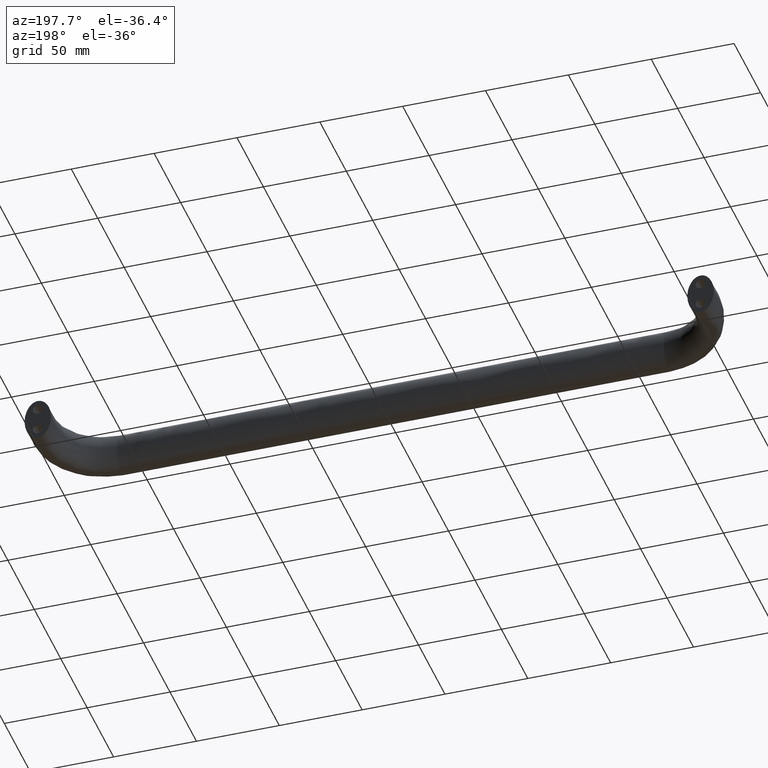
[diagram: clean part render]
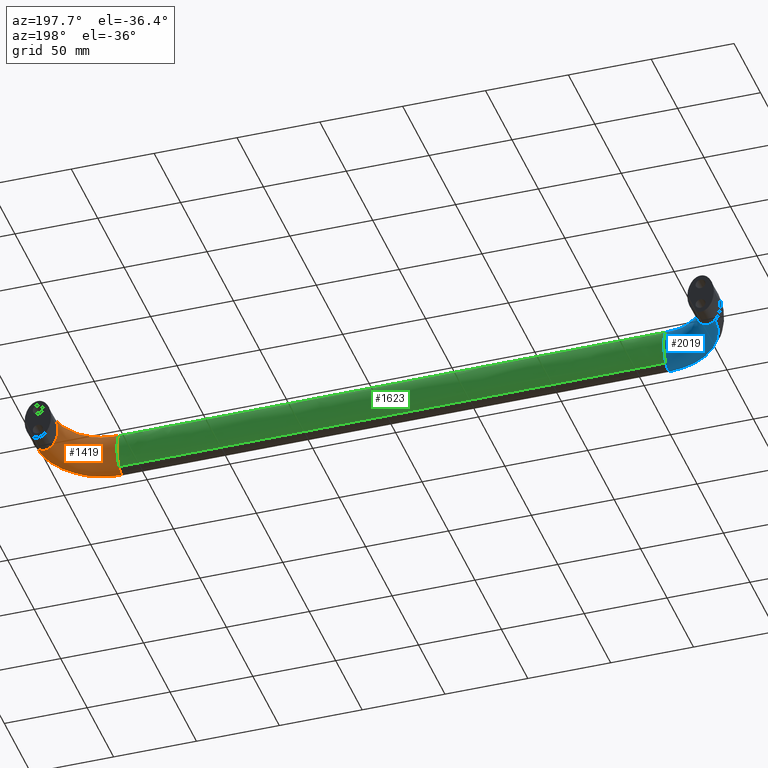
[diagram: same view with three faces highlighted in distinct colors, each labeled with its STEP entity id]
A machine part, auxiliary view with three faces highlighted in distinct colors.
Their STEP definitions:

[orange] entity #1419 — the highlighted face is a freeform B-spline surface patch.
#845=CARTESIAN_POINT('',(395.713650451803520,-13.0,-10.975612390205541));
#846=VERTEX_POINT('',#845);
#847=CARTESIAN_POINT('',(400.0,-13.0,-13.0));
#848=VERTEX_POINT('',#847);
#849=CARTESIAN_POINT('',(395.713650451803520,-13.0,-10.975612390205541));
#850=CARTESIAN_POINT('',(396.102646375906770,-13.0,-11.376898704711261));
#851=CARTESIAN_POINT('',(396.512839411650480,-13.0,-11.723901137766619));
#852=CARTESIAN_POINT('',(397.906016925125930,-13.0,-12.661644796688099));
#853=CARTESIAN_POINT('',(398.952802448803480,-13.0,-13.0));
#854=CARTESIAN_POINT('',(400.0,-13.0,-13.0));
#855=B_SPLINE_CURVE_WITH_KNOTS('',3,(#849,#850,#851,#852,#853,#854),.UNSPECIFIED.,.F.,.U.,(4,2,4),(0.409999999971026,0.437500000000000,0.500000000000000),.UNSPECIFIED.);
#856=EDGE_CURVE('',#846,#848,#855,.T.);
#899=CARTESIAN_POINT('',(400.0,-13.0,13.0));
#900=VERTEX_POINT('',#899);
#908=CARTESIAN_POINT('',(404.702026031346290,-13.0,-10.516608836256710));
#909=VERTEX_POINT('',#908);
#925=CARTESIAN_POINT('',(400.0,-13.0,-13.0));
#926=CARTESIAN_POINT('',(401.047197551196520,-13.0,-13.0));
#927=CARTESIAN_POINT('',(402.093983074874470,-13.0,-12.661644796688099));
#928=CARTESIAN_POINT('',(403.641958090168370,-13.0,-11.619707397670030));
#929=CARTESIAN_POINT('',(404.193626233137710,-13.0,-11.116537311956140));
#930=CARTESIAN_POINT('',(404.702026031346290,-13.0,-10.516608836256710));
#931=B_SPLINE_CURVE_WITH_KNOTS('',3,(#925,#926,#927,#928,#929,#930),.UNSPECIFIED.,.F.,.U.,(4,2,4),(0.500000000000000,0.562500000000000,0.600000000052967),.UNSPECIFIED.);
#932=EDGE_CURVE('',#848,#909,#931,.T.);
#986=CARTESIAN_POINT('',(400.0,-13.0,13.0));
#987=CARTESIAN_POINT('',(398.952802448803480,-13.0,13.0));
#988=CARTESIAN_POINT('',(397.906016925125930,-13.0,12.661644796688099));
#989=CARTESIAN_POINT('',(395.971048157033010,-13.0,11.359223048605340));
#990=CARTESIAN_POINT('',(395.083626240200490,-13.0,10.395668951176340));
#991=CARTESIAN_POINT('',(392.862184771121520,-13.0,6.785826563922671));
#992=CARTESIAN_POINT('',(392.0,-13.0,3.403392041388941));
#993=CARTESIAN_POINT('',(392.0,-13.0,-3.403392041388945));
#994=CARTESIAN_POINT('',(392.862184771121520,-13.0,-6.785826563922680));
#995=CARTESIAN_POINT('',(394.757814824392430,-13.0,-9.866225400487981));
#996=CARTESIAN_POINT('',(395.218564729751790,-13.0,-10.464884353081461));
#997=CARTESIAN_POINT('',(395.713650451803520,-13.0,-10.975612390205541));
#998=B_SPLINE_CURVE_WITH_KNOTS('',3,(#986,#987,#988,#989,#990,#991,#992,#993,#994,#995,#996,#997),.UNSPECIFIED.,.F.,.U.,(4,2,2,2,2,4),(0.0,0.062500000000000,0.125000000000000,0.250000000000000,0.375000000000000,0.409999999971026),.UNSPECIFIED.);
#999=EDGE_CURVE('',#900,#846,#998,.T.);
#1146=CARTESIAN_POINT('',(365.0,-48.0,13.0));
#1147=VERTEX_POINT('',#1146);
#1148=CARTESIAN_POINT('',(365.0,-48.0,13.0));
#1149=CARTESIAN_POINT('',(369.582238387206080,-47.999967262404901,13.0));
#1150=CARTESIAN_POINT('',(374.161176074402820,-47.089043632954393,13.0));
#1151=CARTESIAN_POINT('',(382.626664191153620,-43.582523642835604,13.0));
#1152=CARTESIAN_POINT('',(386.509135292397100,-40.988339390709008,13.0));
#1153=CARTESIAN_POINT('',(392.988339390661510,-34.509135292349249,13.0));
#1154=CARTESIAN_POINT('',(395.582523642740280,-30.626664191328331,13.0));
#1155=CARTESIAN_POINT('',(399.089043633049810,-22.161176074227850,13.0));
#1156=CARTESIAN_POINT('',(399.999967262340990,-17.582238387337100,13.0));
#1157=CARTESIAN_POINT('',(400.0,-13.0,13.0));
#1158=B_SPLINE_CURVE_WITH_KNOTS('',3,(#1148,#1149,#1150,#1151,#1152,#1153,#1154,#1155,#1156,#1157),.UNSPECIFIED.,.F.,.U.,(4,2,2,2,4),(0.854110883968730,0.883608251625648,0.913105619282566,0.942602986939485,0.972100354596403),.UNSPECIFIED.);
#1159=EDGE_CURVE('',#1147,#900,#1158,.T.);
#1161=CARTESIAN_POINT('',(365.0,-52.702026031346250,-10.516608836256699));
#1162=VERTEX_POINT('',#1161);
#1178=CARTESIAN_POINT('',(365.0,-52.702026031346250,-10.516608836256699));
#1179=CARTESIAN_POINT('',(370.197832790003420,-52.701986561494763,-10.516608837527739));
#1180=CARTESIAN_POINT('',(375.391921456345070,-51.668688504635632,-10.516608837527739));
#1181=CARTESIAN_POINT('',(384.994693729877890,-47.691089992556293,-10.516608837527739));
#1182=CARTESIAN_POINT('',(389.398749979083680,-44.748393686684700,-10.516608837527739));
#1183=CARTESIAN_POINT('',(396.748393686612590,-37.398749979011477,-10.516608837527739));
#1184=CARTESIAN_POINT('',(399.691089992463110,-32.994693730027159,-10.516608837527739));
#1185=CARTESIAN_POINT('',(403.668688504728610,-23.391921456195838,-10.516608837527739));
#1186=CARTESIAN_POINT('',(404.701986561451800,-18.197832790115118,-10.516608837527739));
#1187=CARTESIAN_POINT('',(404.702026031346290,-13.0,-10.516608836256710));
#1188=B_SPLINE_CURVE_WITH_KNOTS('',3,(#1178,#1179,#1180,#1181,#1182,#1183,#1184,#1185,#1186,#1187),.UNSPECIFIED.,.F.,.U.,(4,2,2,2,4),(0.854110883968730,0.883608251625648,0.913105619282566,0.942602986939485,0.972100354596403),.UNSPECIFIED.);
#1189=EDGE_CURVE('',#1162,#909,#1188,.T.);
#1194=CARTESIAN_POINT('',(365.0,-48.0,13.0));
#1195=CARTESIAN_POINT('',(365.0,-46.952802448803403,13.0));
#1196=CARTESIAN_POINT('',(365.0,-45.906016925125698,12.661644796688099));
#1197=CARTESIAN_POINT('',(365.0,-43.971048157032747,11.359223048605340));
#1198=CARTESIAN_POINT('',(365.0,-43.083626240200651,10.395668951176340));
#1199=CARTESIAN_POINT('',(365.0,-40.862184771121449,6.785826563922671));
#1200=CARTESIAN_POINT('',(365.0,-40.0,3.403392041388941));
#1201=CARTESIAN_POINT('',(365.0,-40.0,-3.403392041388945));
#1202=CARTESIAN_POINT('',(365.0,-40.862184771121449,-6.785826563922680));
#1203=CARTESIAN_POINT('',(365.0,-43.083626240200651,-10.395668951176340));
#1204=CARTESIAN_POINT('',(365.0,-43.971048157032747,-11.359223048605340));
#1205=CARTESIAN_POINT('',(365.0,-45.906016925125698,-12.661644796688099));
#1206=CARTESIAN_POINT('',(365.0,-46.952802448803403,-13.0));
#1207=CARTESIAN_POINT('',(365.0,-49.047197551196597,-13.0));
#1208=CARTESIAN_POINT('',(365.0,-50.093983074874203,-12.661644796688099));
#1209=CARTESIAN_POINT('',(365.0,-51.641958089348599,-11.619707398221911));
#1210=CARTESIAN_POINT('',(365.0,-52.193626231579323,-11.116537313377529));
#1211=CARTESIAN_POINT('',(365.0,-52.702026030269117,-10.516608837527739));
#1212=CARTESIAN_POINT('',(369.582238387206080,-47.999967262404901,13.0));
#1213=CARTESIAN_POINT('',(369.445138135756510,-46.952771180032997,13.0));
#1214=CARTESIAN_POINT('',(369.308091827275970,-45.905987101944298,12.661644796688099));
#1215=CARTESIAN_POINT('',(369.054763594672010,-43.971020963229101,11.359223048605340));
#1216=CARTESIAN_POINT('',(368.938581344383980,-43.083600232616547,10.395668951176340));
#1217=CARTESIAN_POINT('',(368.647747791628490,-40.862161674302001,6.785826563922671));
#1218=CARTESIAN_POINT('',(368.534869616055520,-39.999978008878053,3.403392041388941));
#1219=CARTESIAN_POINT('',(368.534869616055520,-39.999978008878053,-3.403392041388945));
#1220=CARTESIAN_POINT('',(368.647747791628490,-40.862161674287897,-6.785826563922680));
#1221=CARTESIAN_POINT('',(368.938581344383980,-43.083600232601853,-10.395668951176340));
#1222=CARTESIAN_POINT('',(369.054763594672010,-43.971020963229101,-11.359223048605340));
#1223=CARTESIAN_POINT('',(369.308091827275970,-45.905987101944298,-12.661644796688099));
#1224=CARTESIAN_POINT('',(369.445138135756510,-46.952771180032997,-13.0));
#1225=CARTESIAN_POINT('',(369.719338638655470,-49.047163344776813,-13.0));
#1226=CARTESIAN_POINT('',(369.856384947094000,-50.093947378889602,-12.661644796688099));
#1227=CARTESIAN_POINT('',(370.059047533056800,-51.641920162705517,-11.619707398221911));
#1228=CARTESIAN_POINT('',(370.131272531018280,-52.193587504803247,-11.116537313377529));
#1229=CARTESIAN_POINT('',(370.197832790003420,-52.701986561494763,-10.516608837527739));
#1230=CARTESIAN_POINT('',(374.161176074402820,-47.089043632954393,13.0));
#1231=CARTESIAN_POINT('',(373.887074327179500,-46.069101832527892,13.0));
#1232=CARTESIAN_POINT('',(373.613080427427520,-45.049561335647702,12.661644796688099));
#1233=CARTESIAN_POINT('',(373.106606439378030,-43.164954628108099,11.359223048605340));
#1234=CARTESIAN_POINT('',(372.874325626980010,-42.300629929712350,10.395668951176340));
#1235=CARTESIAN_POINT('',(372.292868014461990,-40.137006639215450,6.785826563922671));
#1236=CARTESIAN_POINT('',(372.067192971685470,-39.297262231152601,3.403392041388941));
#1237=CARTESIAN_POINT('',(372.067192971685470,-39.297262231152601,-3.403392041388945));
#1238=CARTESIAN_POINT('',(372.292868014461990,-40.137006639199548,-6.785826563922680));
#1239=CARTESIAN_POINT('',(372.874325626980010,-42.300629929712350,-10.395668951176340));
#1240=CARTESIAN_POINT('',(373.106606439378030,-43.164954628092246,-11.359223048605340));
#1241=CARTESIAN_POINT('',(373.613080427427520,-45.049561335631800,-12.661644796688099));
#1242=CARTESIAN_POINT('',(373.887074327179500,-46.069101832511997,-13.0));
#1243=CARTESIAN_POINT('',(374.435277821626020,-48.108985433380901,-13.0));
#1244=CARTESIAN_POINT('',(374.709271721378000,-49.128525930261098,-12.661644796688099));
#1245=CARTESIAN_POINT('',(375.114450911817580,-50.636211296292771,-11.619707398221911));
#1246=CARTESIAN_POINT('',(375.258848882846910,-51.173520992619977,-11.116537313377529));
#1247=CARTESIAN_POINT('',(375.391921456345070,-51.668688504635632,-10.516608837527739));
#1248=CARTESIAN_POINT('',(382.626664191153620,-43.582523642835604,13.0));
#1249=CARTESIAN_POINT('',(382.099275631864490,-42.667496675169147,13.0));
#1250=CARTESIAN_POINT('',(381.572094577314370,-41.752829731539549,12.661644796688099));
#1251=CARTESIAN_POINT('',(380.597607585977530,-40.062080357299791,11.359223048605340));
#1252=CARTESIAN_POINT('',(380.150685068196990,-39.286663164369351,10.395668951176340));
#1253=CARTESIAN_POINT('',(379.031924988344490,-37.345597842958149,6.785826563922671));
#1254=CARTESIAN_POINT('',(378.597712376028880,-36.592232524456797,3.403392041388941));
#1255=CARTESIAN_POINT('',(378.597712376028880,-36.592232524456797,-3.403392041388945));
#1256=CARTESIAN_POINT('',(379.031924988344490,-37.345597842974037,-6.785826563922680));
#1257=CARTESIAN_POINT('',(380.150685068196990,-39.286663164369351,-10.395668951176340));
#1258=CARTESIAN_POINT('',(380.597607585977530,-40.062080357315700,-11.359223048605340));
#1259=CARTESIAN_POINT('',(381.572094577314370,-41.752829731555501,-12.661644796688099));
#1260=CARTESIAN_POINT('',(382.099275631864490,-42.667496675185099,-13.0));
#1261=CARTESIAN_POINT('',(383.154052750442470,-44.497550610502053,-13.0));
#1262=CARTESIAN_POINT('',(383.681233804992470,-45.412217554131601,-12.661644796688099));
#1263=CARTESIAN_POINT('',(384.460823398062080,-46.764817053523437,-11.619707398221911));
#1264=CARTESIAN_POINT('',(384.738653943423510,-47.246857167887200,-11.116537313377529));
#1265=CARTESIAN_POINT('',(384.994693729877890,-47.691089992556300,-10.516608837527739));
#1266=CARTESIAN_POINT('',(386.509135292397100,-40.988339390709008,13.0));
#1267=CARTESIAN_POINT('',(385.865583469258520,-40.150930234366051,13.0));
#1268=CARTESIAN_POINT('',(385.222284856455470,-39.313850562767698,12.661644796688099));
#1269=CARTESIAN_POINT('',(384.033156141597490,-37.766520203004397,11.359223048605340));
#1270=CARTESIAN_POINT('',(383.487793911034490,-37.056878323252050,10.395668951176340));
#1271=CARTESIAN_POINT('',(382.122614336619620,-35.280465244029749,6.785826563922671));
#1272=CARTESIAN_POINT('',(381.592761511285000,-34.591004672836313,3.403392041388941));
#1273=CARTESIAN_POINT('',(381.592761511285000,-34.591004672836313,-3.403392041388945));
#1274=CARTESIAN_POINT('',(382.122614336619620,-35.280465244013847,-6.785826563922680));
#1275=CARTESIAN_POINT('',(383.487793911034490,-37.056878323267952,-10.395668951176340));
#1276=CARTESIAN_POINT('',(384.033156141597490,-37.766520203004397,-11.359223048605340));
#1277=CARTESIAN_POINT('',(385.222284856455470,-39.313850562767698,-12.661644796688099));
#1278=CARTESIAN_POINT('',(385.865583469258520,-40.150930234366051,-13.0));
#1279=CARTESIAN_POINT('',(387.152687115535510,-41.825748547051958,-13.0));
#1280=CARTESIAN_POINT('',(387.795985728338510,-42.662828218650247,-12.661644796688099));
#1281=CARTESIAN_POINT('',(388.747288700224890,-43.900692506460928,-11.619707398221911));
#1282=CARTESIAN_POINT('',(389.086314549010520,-44.341843226343371,-11.116537313377529));
#1283=CARTESIAN_POINT('',(389.398749979083680,-44.748393686684693,-10.516608837527739));
#1284=CARTESIAN_POINT('',(392.988339390661510,-34.509135292349249,13.0));
#1285=CARTESIAN_POINT('',(392.150930234413980,-33.865583469306102,13.0));
#1286=CARTESIAN_POINT('',(391.313850562735980,-33.222284856423649,12.661644796688099));
#1287=CARTESIAN_POINT('',(389.766520202988490,-32.033156141581550,11.359223048605340));
#1288=CARTESIAN_POINT('',(389.056878323220470,-31.487793911002800,10.395668951176340));
#1289=CARTESIAN_POINT('',(387.280465244045500,-30.122614336635301,6.785826563922671));
#1290=CARTESIAN_POINT('',(386.591004672788470,-29.592761511237200,3.403392041388941));
#1291=CARTESIAN_POINT('',(386.591004672788470,-29.592761511237200,-3.403392041388945));
#1292=CARTESIAN_POINT('',(387.280465244045500,-30.122614336651200,-6.785826563922680));
#1293=CARTESIAN_POINT('',(389.056878323220470,-31.487793910986898,-10.395668951176340));
#1294=CARTESIAN_POINT('',(389.766520202988490,-32.033156141581550,-11.359223048605340));
#1295=CARTESIAN_POINT('',(391.313850562735980,-33.222284856423649,-12.661644796688099));
#1296=CARTESIAN_POINT('',(392.150930234413980,-33.865583469306102,-13.0));
#1297=CARTESIAN_POINT('',(393.825748546908980,-35.152687115392403,-13.0));
#1298=CARTESIAN_POINT('',(394.662828218586980,-35.795985728274843,-12.661644796688099));
#1299=CARTESIAN_POINT('',(395.900692506384470,-36.747288700148488,-11.619707398221911));
#1300=CARTESIAN_POINT('',(396.341843226270780,-37.086314548937906,-11.116537313377529));
#1301=CARTESIAN_POINT('',(396.748393686612590,-37.398749979011477,-10.516608837527739));
#1302=CARTESIAN_POINT('',(395.582523642740280,-30.626664191328331,13.0));
#1303=CARTESIAN_POINT('',(394.667496675105610,-30.099275631991500,13.0));
#1304=CARTESIAN_POINT('',(393.752829731492000,-29.572094577521050,12.661644796688099));
#1305=CARTESIAN_POINT('',(392.062080357284000,-28.597607586207900,11.359223048605340));
#1306=CARTESIAN_POINT('',(391.286663164290020,-28.150685068387499,10.395668951176340));
#1307=CARTESIAN_POINT('',(389.345597842894510,-27.031924988487351,6.785826563922671));
#1308=CARTESIAN_POINT('',(388.592232524298030,-26.597712376164150,3.403392041388941));
#1309=CARTESIAN_POINT('',(388.592232524298030,-26.597712376164150,-3.403392041388945));
#1310=CARTESIAN_POINT('',(389.345597842894510,-27.031924988495302,-6.785826563922680));
#1311=CARTESIAN_POINT('',(391.286663164290020,-28.150685068379548,-10.395668951176340));
#1312=CARTESIAN_POINT('',(392.062080357284000,-28.597607586215851,-11.359223048605340));
#1313=CARTESIAN_POINT('',(393.752829731492000,-29.572094577529001,-12.661644796688099));
#1314=CARTESIAN_POINT('',(394.667496675105610,-30.099275631983549,-13.0));
#1315=CARTESIAN_POINT('',(396.497550610375010,-31.154052750665151,-13.0));
#1316=CARTESIAN_POINT('',(397.412217553988510,-31.681233805135602,-12.661644796688099));
#1317=CARTESIAN_POINT('',(398.764817053456510,-32.460823398186122,-11.619707398221911));
#1318=CARTESIAN_POINT('',(399.246857167808800,-32.738653943559036,-11.116537313377529));
#1319=CARTESIAN_POINT('',(399.691089992463110,-32.994693730027159,-10.516608837527739));
#1320=CARTESIAN_POINT('',(399.089043633049810,-22.161176074227850,13.0));
#1321=CARTESIAN_POINT('',(398.069101832591510,-21.887074327052201,13.0));
#1322=CARTESIAN_POINT('',(397.049561335695500,-21.613080427220599,12.661644796688099));
#1323=CARTESIAN_POINT('',(395.164954628124010,-21.106606439147601,11.359223048605340));
#1324=CARTESIAN_POINT('',(394.300629929792020,-20.874325626789350,10.395668951176340));
#1325=CARTESIAN_POINT('',(392.137006639278980,-20.292868014318749,6.785826563922671));
#1326=CARTESIAN_POINT('',(391.297262231311490,-20.067192971550600,3.403392041388941));
#1327=CARTESIAN_POINT('',(391.297262231311490,-20.067192971550600,-3.403392041388945));
#1328=CARTESIAN_POINT('',(392.137006639278980,-20.292868014310798,-6.785826563922680));
#1329=CARTESIAN_POINT('',(394.300629929792020,-20.874325626797301,-10.395668951176340));
#1330=CARTESIAN_POINT('',(395.164954628124010,-21.106606439139650,-11.359223048605340));
#1331=CARTESIAN_POINT('',(397.049561335695500,-21.613080427212651,-12.661644796688099));
#1332=CARTESIAN_POINT('',(398.069101832591510,-21.887074327060152,-13.0));
#1333=CARTESIAN_POINT('',(400.108985433508000,-22.435277821403499,-13.0));
#1334=CARTESIAN_POINT('',(401.128525930404010,-22.709271721235151,-12.661644796688099));
#1335=CARTESIAN_POINT('',(402.636211296359590,-23.114450911693549,-11.619707398221911));
#1336=CARTESIAN_POINT('',(403.173520992698170,-23.258848882711280,-11.116537313377529));
#1337=CARTESIAN_POINT('',(403.668688504728720,-23.391921456195838,-10.516608837527739));
#1338=CARTESIAN_POINT('',(399.999967262340990,-17.582238387337100,13.0));
#1339=CARTESIAN_POINT('',(398.952771179985970,-17.445138135851749,13.0));
#1340=CARTESIAN_POINT('',(397.905987101928990,-17.308091827431049,12.661644796688099));
#1341=CARTESIAN_POINT('',(395.971020963154500,-17.054763594844751,11.359223048605340));
#1342=CARTESIAN_POINT('',(395.083600232528510,-16.938581344527250,10.395668951176340));
#1343=CARTESIAN_POINT('',(392.862161674231520,-16.647747791736052,6.785826563922671));
#1344=CARTESIAN_POINT('',(391.999978008877970,-16.534869616156850,3.403392041388941));
#1345=CARTESIAN_POINT('',(391.999978008877970,-16.534869616156850,-3.403392041388945));
#1346=CARTESIAN_POINT('',(392.862161674231520,-16.647747791742049,-6.785826563922680));
#1347=CARTESIAN_POINT('',(395.083600232528510,-16.938581344521300,-10.395668951176340));
#1348=CARTESIAN_POINT('',(395.971020963154500,-17.054763594850751,-11.359223048605340));
#1349=CARTESIAN_POINT('',(397.905987101928990,-17.308091827437000,-12.661644796688099));
#1350=CARTESIAN_POINT('',(398.952771179985970,-17.445138135845799,-13.0));
#1351=CARTESIAN_POINT('',(401.047163344696000,-17.719338638822450,-13.0));
#1352=CARTESIAN_POINT('',(402.093947378775000,-17.856384947201452,-12.661644796688099));
#1353=CARTESIAN_POINT('',(403.641920162642580,-18.059047533149808,-11.619707398221911));
#1354=CARTESIAN_POINT('',(404.193587504753910,-18.131272531119841,-11.116537313377529));
#1355=CARTESIAN_POINT('',(404.701986561451800,-18.197832790115118,-10.516608837527739));
#1356=CARTESIAN_POINT('',(400.0,-13.0,13.0));
#1357=CARTESIAN_POINT('',(398.952802448803480,-13.0,13.0));
#1358=CARTESIAN_POINT('',(397.906016925125930,-13.0,12.661644796688099));
#1359=CARTESIAN_POINT('',(395.971048157033010,-13.0,11.359223048605340));
#1360=CARTESIAN_POINT('',(395.083626240200490,-13.0,10.395668951176340));
#1361=CARTESIAN_POINT('',(392.862184771121520,-13.0,6.785826563922671));
#1362=CARTESIAN_POINT('',(392.0,-13.0,3.403392041388941));
#1363=CARTESIAN_POINT('',(392.0,-13.0,-3.403392041388945));
#1364=CARTESIAN_POINT('',(392.862184771121520,-13.0,-6.785826563922680));
#1365=CARTESIAN_POINT('',(395.083626240200490,-13.0,-10.395668951176340));
#1366=CARTESIAN_POINT('',(395.971048157033010,-13.0,-11.359223048605340));
#1367=CARTESIAN_POINT('',(397.906016925125930,-13.0,-12.661644796688099));
#1368=CARTESIAN_POINT('',(398.952802448803480,-13.0,-13.0));
#1369=CARTESIAN_POINT('',(401.047197551196520,-13.0,-13.0));
#1370=CARTESIAN_POINT('',(402.093983074874470,-13.0,-12.661644796688099));
#1371=CARTESIAN_POINT('',(403.641958089348520,-13.0,-11.619707398221911));
#1372=CARTESIAN_POINT('',(404.193626231579290,-13.0,-11.116537313377529));
#1373=CARTESIAN_POINT('',(404.702026030269220,-13.0,-10.516608837527739));
#1374=B_SPLINE_SURFACE_WITH_KNOTS('',3,3,((#1194,#1212,#1230,#1248,#1266,#1284,#1302,#1320,#1338,#1356),(#1195,#1213,#1231,#1249,#1267,#1285,#1303,#1321,#1339,#1357),(#1196,#1214,#1232,#1250,#1268,#1286,#1304,#1322,#1340,#1358),(#1197,#1215,#1233,#1251,#1269,#1287,#1305,#1323,#1341,#1359),(#1198,#1216,#1234,#1252,#1270,#1288,#1306,#1324,#1342,#1360),(#1199,#1217,#1235,#1253,#1271,#1289,#1307,#1325,#1343,#1361),(#1200,#1218,#1236,#1254,#1272,#1290,#1308,#1326,#1344,#1362),(#1201,#1219,#1237,#1255,#1273,#1291,#1309,#1327,#1345,#1363),(#1202,#1220,#1238,#1256,#1274,#1292,#1310,#1328,#1346,#1364),(#1203,#1221,#1239,#1257,#1275,#1293,#1311,#1329,#1347,#1365),(#1204,#1222,#1240,#1258,#1276,#1294,#1312,#1330,#1348,#1366),(#1205,#1223,#1241,#1259,#1277,#1295,#1313,#1331,#1349,#1367),(#1206,#1224,#1242,#1260,#1278,#1296,#1314,#1332,#1350,#1368),(#1207,#1225,#1243,#1261,#1279,#1297,#1315,#1333,#1351,#1369),(#1208,#1226,#1244,#1262,#1280,#1298,#1316,#1334,#1352,#1370),(#1209,#1227,#1245,#1263,#1281,#1299,#1317,#1335,#1353,#1371),(#1210,#1228,#1246,#1264,#1282,#1300,#1318,#1336,#1354,#1372),(#1211,#1229,#1247,#1265,#1283,#1301,#1319,#1337,#1355,#1373)),.UNSPECIFIED.,.F.,.F.,.U.,(4,2,2,2,2,2,2,2,4),(4,2,2,2,4),(0.0,4.993041359138182,9.986082718276364,19.972165436552729,29.958248154829089,34.951289513967282,39.944330873105457,44.937372232243639,47.933197047726537),(0.0,15.593498370794830,31.186996741589720,46.780495112385204,62.373993483180087),.UNSPECIFIED.);
#1375=ORIENTED_EDGE('',*,*,#932,.T.);
#1376=ORIENTED_EDGE('',*,*,#1189,.F.);
#1377=CARTESIAN_POINT('',(365.0,-48.0,-13.0));
#1378=VERTEX_POINT('',#1377);
#1379=CARTESIAN_POINT('',(365.0,-48.0,-13.0));
#1380=CARTESIAN_POINT('',(365.0,-49.047197551196597,-13.0));
#1381=CARTESIAN_POINT('',(365.0,-50.093983074874203,-12.661644796688099));
#1382=CARTESIAN_POINT('',(365.0,-51.641958090168508,-11.619707397670030));
#1383=CARTESIAN_POINT('',(365.0,-52.193626233137707,-11.116537311956140));
#1384=CARTESIAN_POINT('',(365.0,-52.702026031346250,-10.516608836256699));
#1385=B_SPLINE_CURVE_WITH_KNOTS('',3,(#1379,#1380,#1381,#1382,#1383,#1384),.UNSPECIFIED.,.F.,.U.,(4,2,4),(0.500000000000000,0.562500000000000,0.600000000052967),.UNSPECIFIED.);
#1386=EDGE_CURVE('',#1378,#1162,#1385,.T.);
#1387=ORIENTED_EDGE('',*,*,#1386,.F.);
#1388=CARTESIAN_POINT('',(365.0,-43.713650452200071,-10.975612390614710));
#1389=VERTEX_POINT('',#1388);
#1390=CARTESIAN_POINT('',(365.0,-43.713650452200071,-10.975612390614710));
#1391=CARTESIAN_POINT('',(365.0,-44.102646376464328,-11.376898705183009));
#1392=CARTESIAN_POINT('',(365.0,-44.512839411939630,-11.723901137961390));
#1393=CARTESIAN_POINT('',(365.0,-45.906016925125698,-12.661644796688099));
#1394=CARTESIAN_POINT('',(365.0,-46.952802448803403,-13.0));
#1395=CARTESIAN_POINT('',(365.0,-48.0,-13.0));
#1396=B_SPLINE_CURVE_WITH_KNOTS('',3,(#1390,#1391,#1392,#1393,#1394,#1395),.UNSPECIFIED.,.F.,.U.,(4,2,4),(0.409999999989719,0.437500000000000,0.500000000000000),.UNSPECIFIED.);
#1397=EDGE_CURVE('',#1389,#1378,#1396,.T.);
#1398=ORIENTED_EDGE('',*,*,#1397,.F.);
#1399=CARTESIAN_POINT('',(365.0,-48.0,13.0));
#1400=CARTESIAN_POINT('',(365.0,-46.952802448803403,13.0));
#1401=CARTESIAN_POINT('',(365.0,-45.906016925125698,12.661644796688099));
#1402=CARTESIAN_POINT('',(365.0,-43.971048157032747,11.359223048605340));
#1403=CARTESIAN_POINT('',(365.0,-43.083626240200651,10.395668951176340));
#1404=CARTESIAN_POINT('',(365.0,-40.862184771121449,6.785826563922671));
#1405=CARTESIAN_POINT('',(365.0,-40.0,3.403392041388941));
#1406=CARTESIAN_POINT('',(365.0,-40.0,-3.403392041388945));
#1407=CARTESIAN_POINT('',(365.0,-40.862184771121449,-6.785826563922680));
#1408=CARTESIAN_POINT('',(365.0,-42.757814824613902,-9.866225400847878));
#1409=CARTESIAN_POINT('',(365.0,-43.218564730243941,-10.464884353720951));
#1410=CARTESIAN_POINT('',(365.0,-43.713650452200071,-10.975612390614710));
#1411=B_SPLINE_CURVE_WITH_KNOTS('',3,(#1399,#1400,#1401,#1402,#1403,#1404,#1405,#1406,#1407,#1408,#1409,#1410),.UNSPECIFIED.,.F.,.U.,(4,2,2,2,2,4),(0.0,0.062500000000000,0.125000000000000,0.250000000000000,0.375000000000000,0.409999999989719),.UNSPECIFIED.);
#1412=EDGE_CURVE('',#1147,#1389,#1411,.T.);
#1413=ORIENTED_EDGE('',*,*,#1412,.F.);
#1414=ORIENTED_EDGE('',*,*,#1159,.T.);
#1415=ORIENTED_EDGE('',*,*,#999,.T.);
#1416=ORIENTED_EDGE('',*,*,#856,.T.);
#1417=EDGE_LOOP('',(#1375,#1376,#1387,#1398,#1413,#1414,#1415,#1416));
#1418=FACE_OUTER_BOUND('',#1417,.T.);
#1419=ADVANCED_FACE('',(#1418),#1374,.F.);

[blue] entity #2019 — the highlighted face is a freeform B-spline surface patch.
#1496=CARTESIAN_POINT('',(35.0,-48.0,13.0));
#1497=VERTEX_POINT('',#1496);
#1505=CARTESIAN_POINT('',(35.0,-52.702026031346250,-10.516608836256699));
#1506=VERTEX_POINT('',#1505);
#1522=CARTESIAN_POINT('',(35.0,-48.0,-13.0));
#1523=VERTEX_POINT('',#1522);
#1524=CARTESIAN_POINT('',(35.0,-48.0,-13.0));
#1525=CARTESIAN_POINT('',(35.0,-49.047197551196597,-13.0));
#1526=CARTESIAN_POINT('',(35.0,-50.093983074874203,-12.661644796688099));
#1527=CARTESIAN_POINT('',(35.0,-51.641958090168508,-11.619707397670030));
#1528=CARTESIAN_POINT('',(35.0,-52.193626233137707,-11.116537311956140));
#1529=CARTESIAN_POINT('',(35.0,-52.702026031346250,-10.516608836256699));
#1530=B_SPLINE_CURVE_WITH_KNOTS('',3,(#1524,#1525,#1526,#1527,#1528,#1529),.UNSPECIFIED.,.F.,.U.,(4,2,4),(0.500000000000000,0.562500000000000,0.600000000052967),.UNSPECIFIED.);
#1531=EDGE_CURVE('',#1523,#1506,#1530,.T.);
#1533=CARTESIAN_POINT('',(35.0,-43.713650452200127,-10.975612390614710));
#1534=VERTEX_POINT('',#1533);
#1535=CARTESIAN_POINT('',(35.0,-43.713650452200127,-10.975612390614710));
#1536=CARTESIAN_POINT('',(35.0,-44.102646376464392,-11.376898705183009));
#1537=CARTESIAN_POINT('',(35.0,-44.512839411939687,-11.723901137961390));
#1538=CARTESIAN_POINT('',(35.0,-45.906016925125797,-12.661644796688099));
#1539=CARTESIAN_POINT('',(35.0,-46.952802448803403,-13.0));
#1540=CARTESIAN_POINT('',(35.0,-48.0,-13.0));
#1541=B_SPLINE_CURVE_WITH_KNOTS('',3,(#1535,#1536,#1537,#1538,#1539,#1540),.UNSPECIFIED.,.F.,.U.,(4,2,4),(0.409999999989719,0.437500000000000,0.500000000000000),.UNSPECIFIED.);
#1542=EDGE_CURVE('',#1534,#1523,#1541,.T.);
#1605=CARTESIAN_POINT('',(35.0,-48.0,13.0));
#1606=CARTESIAN_POINT('',(35.0,-46.952802448803403,13.0));
#1607=CARTESIAN_POINT('',(35.0,-45.906016925125797,12.661644796688099));
#1608=CARTESIAN_POINT('',(35.0,-43.971048157032797,11.359223048605340));
#1609=CARTESIAN_POINT('',(35.0,-43.083626240200701,10.395668951176340));
#1610=CARTESIAN_POINT('',(35.0,-40.862184771121498,6.785826563922671));
#1611=CARTESIAN_POINT('',(35.0,-40.0,3.403392041388941));
#1612=CARTESIAN_POINT('',(35.0,-40.0,-3.403392041388945));
#1613=CARTESIAN_POINT('',(35.0,-40.862184771121498,-6.785826563922680));
#1614=CARTESIAN_POINT('',(35.0,-42.757814824613952,-9.866225400847867));
#1615=CARTESIAN_POINT('',(35.0,-43.218564730243983,-10.464884353720930));
#1616=CARTESIAN_POINT('',(35.0,-43.713650452200127,-10.975612390614710));
#1617=B_SPLINE_CURVE_WITH_KNOTS('',3,(#1605,#1606,#1607,#1608,#1609,#1610,#1611,#1612,#1613,#1614,#1615,#1616),.UNSPECIFIED.,.F.,.U.,(4,2,2,2,2,4),(0.0,0.062500000000000,0.125000000000000,0.250000000000000,0.375000000000000,0.409999999989719),.UNSPECIFIED.);
#1618=EDGE_CURVE('',#1497,#1534,#1617,.T.);
#1746=CARTESIAN_POINT('',(1.986692E-015,-13.0,13.0));
#1747=VERTEX_POINT('',#1746);
#1748=CARTESIAN_POINT('',(1.998401E-015,-13.0,13.0));
#1749=CARTESIAN_POINT('',(0.000032737591510,-17.582238387316082,13.0));
#1750=CARTESIAN_POINT('',(0.910956367006005,-22.161176074256129,13.0));
#1751=CARTESIAN_POINT('',(4.417476357203890,-30.626664191300080,13.0));
#1752=CARTESIAN_POINT('',(7.011660609207886,-34.509135292250342,13.0));
#1753=CARTESIAN_POINT('',(13.490864707733850,-40.988339390808079,13.0));
#1754=CARTESIAN_POINT('',(17.373335808785079,-43.582523642825343,13.0));
#1755=CARTESIAN_POINT('',(25.838823925658620,-47.089043632964703,13.0));
#1756=CARTESIAN_POINT('',(30.417761612747970,-47.999967262420853,13.0));
#1757=CARTESIAN_POINT('',(35.0,-48.0,13.0));
#1758=B_SPLINE_CURVE_WITH_KNOTS('',3,(#1748,#1749,#1750,#1751,#1752,#1753,#1754,#1755,#1756,#1757),.UNSPECIFIED.,.F.,.U.,(4,2,2,2,4),(0.027899645403597,0.057397013060515,0.086894380717434,0.116391748374352,0.145889116031270),.UNSPECIFIED.);
#1759=EDGE_CURVE('',#1747,#1497,#1758,.T.);
#1761=CARTESIAN_POINT('',(-4.702026031346259,-13.0,-10.516608836256699));
#1762=VERTEX_POINT('',#1761);
#1778=CARTESIAN_POINT('',(-4.702026031346259,-13.0,-10.516608836256699));
#1779=CARTESIAN_POINT('',(-4.701986561503822,-18.197832790088299,-10.516608837527739));
#1780=CARTESIAN_POINT('',(-3.668688504690738,-23.391921456231760,-10.516608837527739));
#1781=CARTESIAN_POINT('',(0.308910007498723,-32.994693729991219,-10.516608837527739));
#1782=CARTESIAN_POINT('',(3.251606313221114,-37.398749978910139,-10.516608837527739));
#1783=CARTESIAN_POINT('',(10.601250021082681,-44.748393686786201,-10.516608837527739));
#1784=CARTESIAN_POINT('',(15.005306270095531,-47.691089992539560,-10.516608837527739));
#1785=CARTESIAN_POINT('',(24.608078543681380,-51.668688504652373,-10.516608837527739));
#1786=CARTESIAN_POINT('',(29.802167209976979,-52.701986561511710,-10.516608837527739));
#1787=CARTESIAN_POINT('',(35.0,-52.702026031346250,-10.516608836256699));
#1788=B_SPLINE_CURVE_WITH_KNOTS('',3,(#1778,#1779,#1780,#1781,#1782,#1783,#1784,#1785,#1786,#1787),.UNSPECIFIED.,.F.,.U.,(4,2,2,2,4),(0.027899645403597,0.057397013060515,0.086894380717434,0.116391748374352,0.145889116031270),.UNSPECIFIED.);
#1789=EDGE_CURVE('',#1762,#1506,#1788,.T.);
#1794=CARTESIAN_POINT('',(1.951564E-015,-13.0,13.0));
#1795=CARTESIAN_POINT('',(1.047197551196600,-13.0,13.0));
#1796=CARTESIAN_POINT('',(2.093983074874245,-13.0,12.661644796688099));
#1797=CARTESIAN_POINT('',(4.028951842967200,-13.0,11.359223048605340));
#1798=CARTESIAN_POINT('',(4.916373759799321,-13.0,10.395668951176340));
#1799=CARTESIAN_POINT('',(7.137815228878500,-13.0,6.785826563922671));
#1800=CARTESIAN_POINT('',(8.0,-13.0,3.403392041388941));
#1801=CARTESIAN_POINT('',(8.0,-13.0,-3.403392041388945));
#1802=CARTESIAN_POINT('',(7.137815228878500,-13.0,-6.785826563922680));
#1803=CARTESIAN_POINT('',(4.916373759799321,-13.0,-10.395668951176340));
#1804=CARTESIAN_POINT('',(4.028951842967196,-13.0,-11.359223048605340));
#1805=CARTESIAN_POINT('',(2.093983074874245,-13.0,-12.661644796688099));
#1806=CARTESIAN_POINT('',(1.047197551196596,-13.0,-13.0));
#1807=CARTESIAN_POINT('',(-1.047197551196600,-13.0,-13.0));
#1808=CARTESIAN_POINT('',(-2.093983074874240,-13.0,-12.661644796688099));
#1809=CARTESIAN_POINT('',(-3.641958089348604,-13.0,-11.619707398221911));
#1810=CARTESIAN_POINT('',(-4.193626231579324,-13.0,-11.116537313377529));
#1811=CARTESIAN_POINT('',(-4.702026030269138,-13.0,-10.516608837527739));
#1812=CARTESIAN_POINT('',(0.000032737591510,-17.582238387316082,13.0));
#1813=CARTESIAN_POINT('',(1.047228819966446,-17.445138135829900,13.0));
#1814=CARTESIAN_POINT('',(2.094012898046075,-17.308091827411250,12.661644796688099));
#1815=CARTESIAN_POINT('',(4.028979036765255,-17.054763594829002,11.359223048605340));
#1816=CARTESIAN_POINT('',(4.916399767387099,-16.938581344501401,10.395668951176340));
#1817=CARTESIAN_POINT('',(7.137838325703240,-16.647747791726701,6.785826563922671));
#1818=CARTESIAN_POINT('',(8.000021991114990,-16.534869616137300,3.403392041388941));
#1819=CARTESIAN_POINT('',(8.000021991114990,-16.534869616137300,-3.403392041388945));
#1820=CARTESIAN_POINT('',(7.137838325703231,-16.647747791720750,-6.785826563922680));
#1821=CARTESIAN_POINT('',(4.916399767387090,-16.938581344507401,-10.395668951176340));
#1822=CARTESIAN_POINT('',(4.028979036765250,-17.054763594823051,-11.359223048605340));
#1823=CARTESIAN_POINT('',(2.094012898046070,-17.308091827411250,-12.661644796688099));
#1824=CARTESIAN_POINT('',(1.047228819966442,-17.445138135823900,-13.0));
#1825=CARTESIAN_POINT('',(-1.047163344783428,-17.719338638796302,-13.0));
#1826=CARTESIAN_POINT('',(-2.093947378887575,-17.856384947173151,-12.661644796688099));
#1827=CARTESIAN_POINT('',(-3.641920162706823,-18.059047533118310,-11.619707398221911));
#1828=CARTESIAN_POINT('',(-4.193587504808871,-18.131272531091501,-11.116537313377529));
#1829=CARTESIAN_POINT('',(-4.701986561503823,-18.197832790088299,-10.516608837527739));
#1830=CARTESIAN_POINT('',(0.910956367006005,-22.161176074256129,13.0));
#1831=CARTESIAN_POINT('',(1.930898167438050,-21.887074327081599,13.0));
#1832=CARTESIAN_POINT('',(2.950438664323995,-21.613080427247102,12.661644796688099));
#1833=CARTESIAN_POINT('',(4.835045371867330,-21.106606439168800,11.359223048605340));
#1834=CARTESIAN_POINT('',(5.699370070262100,-20.874325626824000,10.395668951176340));
#1835=CARTESIAN_POINT('',(7.862993360764441,-20.292868014331450,6.785826563922671));
#1836=CARTESIAN_POINT('',(8.702737768830291,-20.067192971576851,3.403392041388941));
#1837=CARTESIAN_POINT('',(8.702737768830291,-20.067192971576851,-3.403392041388945));
#1838=CARTESIAN_POINT('',(7.862993360764441,-20.292868014339401,-6.785826563922680));
#1839=CARTESIAN_POINT('',(5.699370070260110,-20.874325626816049,-10.395668951176340));
#1840=CARTESIAN_POINT('',(4.835045371867330,-21.106606439176751,-11.359223048605340));
#1841=CARTESIAN_POINT('',(2.950438664323990,-21.613080427247102,-12.661644796688099));
#1842=CARTESIAN_POINT('',(1.930898167437055,-21.887074327089550,-13.0));
#1843=CARTESIAN_POINT('',(-0.108985433426042,-22.435277821438600,-13.0));
#1844=CARTESIAN_POINT('',(-1.128525930312970,-22.709271721273101,-12.661644796688099));
#1845=CARTESIAN_POINT('',(-2.636211296348034,-23.114450911735741,-11.619707398221911));
#1846=CARTESIAN_POINT('',(-3.173520992675056,-23.258848882749248,-11.116537313377529));
#1847=CARTESIAN_POINT('',(-3.668688504690738,-23.391921456231760,-10.516608837527739));
#1848=CARTESIAN_POINT('',(4.417476357203890,-30.626664191300080,13.0));
#1849=CARTESIAN_POINT('',(5.332503324864801,-30.099275631962151,13.0));
#1850=CARTESIAN_POINT('',(6.247170268488640,-29.572094577494550,12.661644796688099));
#1851=CARTESIAN_POINT('',(7.937919642724620,-28.597607586186751,11.359223048605340));
#1852=CARTESIAN_POINT('',(8.713336835656110,-28.150685068352850,10.395668951176340));
#1853=CARTESIAN_POINT('',(10.654402157061901,-27.031924988474699,6.785826563922671));
#1854=CARTESIAN_POINT('',(11.407767475560201,-26.597712376137949,3.403392041388941));
#1855=CARTESIAN_POINT('',(11.407767475560201,-26.597712376137949,-3.403392041388945));
#1856=CARTESIAN_POINT('',(10.654402157061901,-27.031924988466749,-6.785826563922680));
#1857=CARTESIAN_POINT('',(8.713336835658090,-28.150685068360801,-10.395668951176340));
#1858=CARTESIAN_POINT('',(7.937919642724620,-28.597607586178800,-11.359223048605340));
#1859=CARTESIAN_POINT('',(6.247170268488629,-29.572094577494550,-12.661644796688099));
#1860=CARTESIAN_POINT('',(5.332503324865790,-30.099275631954200,-13.0));
#1861=CARTESIAN_POINT('',(3.502449389542981,-31.154052750630051,-13.0));
#1862=CARTESIAN_POINT('',(2.587782445920145,-31.681233805097651,-12.661644796688099));
#1863=CARTESIAN_POINT('',(1.235182946531754,-32.460823398143937,-11.619707398221911));
#1864=CARTESIAN_POINT('',(0.753142832167799,-32.738653943521058,-11.116537313377529));
#1865=CARTESIAN_POINT('',(0.308910007498723,-32.994693729991212,-10.516608837527739));
#1866=CARTESIAN_POINT('',(7.011660609207886,-34.509135292250342,13.0));
#1867=CARTESIAN_POINT('',(7.849069765552321,-33.865583469212602,13.0));
#1868=CARTESIAN_POINT('',(8.686149437152089,-33.222284856343549,12.661644796688099));
#1869=CARTESIAN_POINT('',(10.233479796926700,-32.033156141512762,11.359223048605340));
#1870=CARTESIAN_POINT('',(10.943121676672940,-31.487793910915951,10.395668951176340));
#1871=CARTESIAN_POINT('',(12.719534755909800,-30.122614336559000,6.785826563922671));
#1872=CARTESIAN_POINT('',(13.408995327109119,-29.592761511174750,3.403392041388941));
#1873=CARTESIAN_POINT('',(13.408995327109119,-29.592761511174750,-3.403392041388945));
#1874=CARTESIAN_POINT('',(12.719534755909780,-30.122614336559050,-6.785826563922680));
#1875=CARTESIAN_POINT('',(10.943121676668961,-31.487793910931849,-10.395668951176340));
#1876=CARTESIAN_POINT('',(10.233479796922721,-32.033156141496853,-11.359223048605340));
#1877=CARTESIAN_POINT('',(8.686149437152089,-33.222284856343549,-12.661644796688099));
#1878=CARTESIAN_POINT('',(7.849069765552321,-33.865583469228497,-13.0));
#1879=CARTESIAN_POINT('',(6.174251452863441,-35.152687115303898,-13.0));
#1880=CARTESIAN_POINT('',(5.337171781259700,-35.795985728188853,-12.661644796688099));
#1881=CARTESIAN_POINT('',(4.099307493443197,-36.747288700040812,-11.619707398221911));
#1882=CARTESIAN_POINT('',(3.658156773562075,-37.086314548833450,-11.116537313377529));
#1883=CARTESIAN_POINT('',(3.251606313221114,-37.398749978910153,-10.516608837527739));
#1884=CARTESIAN_POINT('',(13.490864707733850,-40.988339390808079,13.0));
#1885=CARTESIAN_POINT('',(14.134416530775541,-40.150930234459651,13.0));
#1886=CARTESIAN_POINT('',(14.777715143656501,-39.313850562847954,12.661644796688099));
#1887=CARTESIAN_POINT('',(15.966843858487350,-37.766520203073348,11.359223048605340));
#1888=CARTESIAN_POINT('',(16.512206089072201,-37.056878323339049,10.395668951176340));
#1889=CARTESIAN_POINT('',(17.877385663425152,-35.280465244106153,6.785826563922671));
#1890=CARTESIAN_POINT('',(18.407238488817349,-34.591004672898848,3.403392041388941));
#1891=CARTESIAN_POINT('',(18.407238488817349,-34.591004672898848,-3.403392041388945));
#1892=CARTESIAN_POINT('',(17.877385663425152,-35.280465244106153,-6.785826563922680));
#1893=CARTESIAN_POINT('',(16.512206089076152,-37.056878323323147,-10.395668951176340));
#1894=CARTESIAN_POINT('',(15.966843858491300,-37.766520203089250,-11.359223048605340));
#1895=CARTESIAN_POINT('',(14.777715143656501,-39.313850562847954,-12.661644796688099));
#1896=CARTESIAN_POINT('',(14.134416530775519,-40.150930234443749,-13.0));
#1897=CARTESIAN_POINT('',(12.847312884692160,-41.825748547140599,-13.0));
#1898=CARTESIAN_POINT('',(12.204014271815160,-42.662828218736401,-12.661644796688099));
#1899=CARTESIAN_POINT('',(11.252711299947340,-43.900692506568802,-11.619707398221911));
#1900=CARTESIAN_POINT('',(10.913685451156610,-44.341843226448013,-11.116537313377529));
#1901=CARTESIAN_POINT('',(10.601250021082681,-44.748393686786201,-10.516608837527739));
#1902=CARTESIAN_POINT('',(17.373335808785079,-43.582523642825343,13.0));
#1903=CARTESIAN_POINT('',(17.900724368122599,-42.667496675165502,13.0));
#1904=CARTESIAN_POINT('',(18.427905422581851,-41.752829731534547,12.661644796688099));
#1905=CARTESIAN_POINT('',(19.402392413880950,-40.062080357308197,11.359223048605340));
#1906=CARTESIAN_POINT('',(19.849314931706552,-39.286663164376563,10.395668951176340));
#1907=CARTESIAN_POINT('',(20.968075011591800,-37.345597842962448,6.785826563922671));
#1908=CARTESIAN_POINT('',(21.402287623912301,-36.592232524460051,3.403392041388941));
#1909=CARTESIAN_POINT('',(21.402287623912301,-36.592232524460051,-3.403392041388945));
#1910=CARTESIAN_POINT('',(20.968075011591800,-37.345597842978400,-6.785826563922680));
#1911=CARTESIAN_POINT('',(19.849314931706552,-39.286663164360696,-10.395668951176340));
#1912=CARTESIAN_POINT('',(19.402392413888901,-40.062080357308197,-11.359223048605340));
#1913=CARTESIAN_POINT('',(18.427905422581851,-41.752829731550449,-12.661644796688099));
#1914=CARTESIAN_POINT('',(17.900724368114648,-42.667496675181397,-13.0));
#1915=CARTESIAN_POINT('',(16.845947249439600,-44.497550610501101,-13.0));
#1916=CARTESIAN_POINT('',(16.318766194980348,-45.412217554131992,-12.661644796688099));
#1917=CARTESIAN_POINT('',(15.539176601941071,-46.764817053500401,-11.619707398221911));
#1918=CARTESIAN_POINT('',(15.261346056565110,-47.246857167866757,-11.116537313377529));
#1919=CARTESIAN_POINT('',(15.005306270095531,-47.691089992539560,-10.516608837527739));
#1920=CARTESIAN_POINT('',(25.838823925658620,-47.089043632964703,13.0));
#1921=CARTESIAN_POINT('',(26.112925672833551,-46.069101832531601,13.0));
#1922=CARTESIAN_POINT('',(26.386919572676401,-45.049561335652797,12.661644796688099));
#1923=CARTESIAN_POINT('',(26.893393560763450,-43.164954628099800,11.359223048605340));
#1924=CARTESIAN_POINT('',(27.125674373116500,-42.300629929705202,10.395668951176340));
#1925=CARTESIAN_POINT('',(27.707131985602000,-40.137006639211137,6.785826563922671));
#1926=CARTESIAN_POINT('',(27.932807028372849,-39.297262231149453,3.403392041388941));
#1927=CARTESIAN_POINT('',(27.932807028372849,-39.297262231149453,-3.403392041388945));
#1928=CARTESIAN_POINT('',(27.707131985601951,-40.137006639195249,-6.785826563922680));
#1929=CARTESIAN_POINT('',(27.125674373116500,-42.300629929721097,-10.395668951176340));
#1930=CARTESIAN_POINT('',(26.893393560755499,-43.164954628099849,-11.359223048605340));
#1931=CARTESIAN_POINT('',(26.386919572676401,-45.049561335636902,-12.661644796688099));
#1932=CARTESIAN_POINT('',(26.112925672841499,-46.069101832515699,-13.0));
#1933=CARTESIAN_POINT('',(25.564722178491600,-48.108985433381903,-13.0));
#1934=CARTESIAN_POINT('',(25.290728278648800,-49.128525930260800,-12.661644796688099));
#1935=CARTESIAN_POINT('',(24.885549088179161,-50.636211296315842,-11.619707398221911));
#1936=CARTESIAN_POINT('',(24.741151117164481,-51.173520992640427,-11.116537313377529));
#1937=CARTESIAN_POINT('',(24.608078543681380,-51.668688504652373,-10.516608837527739));
#1938=CARTESIAN_POINT('',(30.417761612747970,-47.999967262420853,13.0));
#1939=CARTESIAN_POINT('',(30.554861864233850,-46.952771180048693,13.0));
#1940=CARTESIAN_POINT('',(30.691908172646212,-45.905987101959703,12.661644796688099));
#1941=CARTESIAN_POINT('',(30.945236405221952,-43.971020963244086,11.359223048605340));
#1942=CARTESIAN_POINT('',(31.061418655543250,-43.083600232631312,10.395668951176340));
#1943=CARTESIAN_POINT('',(31.352252208323300,-40.862161674316162,6.785826563922671));
#1944=CARTESIAN_POINT('',(31.465130383900551,-39.999978008891951,3.403392041388941));
#1945=CARTESIAN_POINT('',(31.465130383900551,-39.999978008891951,-3.403392041388945));
#1946=CARTESIAN_POINT('',(31.352252208323300,-40.862161674302051,-6.785826563922680));
#1947=CARTESIAN_POINT('',(31.061418655543299,-43.083600232616597,-10.395668951176340));
#1948=CARTESIAN_POINT('',(30.945236405227899,-43.971020963244086,-11.359223048605340));
#1949=CARTESIAN_POINT('',(30.691908172646212,-45.905987101959703,-12.661644796688099));
#1950=CARTESIAN_POINT('',(30.554861864227849,-46.952771180048693,-13.0));
#1951=CARTESIAN_POINT('',(30.280661361256101,-49.047163344793013,-13.0));
#1952=CARTESIAN_POINT('',(30.143615052885551,-50.093947378906002,-12.661644796688099));
#1953=CARTESIAN_POINT('',(29.940952466945632,-51.641920162722244,-11.619707398221911));
#1954=CARTESIAN_POINT('',(29.868727468973329,-52.193587504820087,-11.116537313377529));
#1955=CARTESIAN_POINT('',(29.802167209976979,-52.701986561511710,-10.516608837527739));
#1956=CARTESIAN_POINT('',(35.0,-48.0,13.0));
#1957=CARTESIAN_POINT('',(35.0,-46.952802448803403,13.0));
#1958=CARTESIAN_POINT('',(35.0,-45.906016925125797,12.661644796688099));
#1959=CARTESIAN_POINT('',(35.0,-43.971048157032797,11.359223048605340));
#1960=CARTESIAN_POINT('',(35.0,-43.083626240200701,10.395668951176340));
#1961=CARTESIAN_POINT('',(35.0,-40.862184771121498,6.785826563922671));
#1962=CARTESIAN_POINT('',(35.0,-40.0,3.403392041388941));
#1963=CARTESIAN_POINT('',(35.0,-40.0,-3.403392041388945));
#1964=CARTESIAN_POINT('',(35.0,-40.862184771121498,-6.785826563922680));
#1965=CARTESIAN_POINT('',(35.0,-43.083626240200701,-10.395668951176340));
#1966=CARTESIAN_POINT('',(35.0,-43.971048157032797,-11.359223048605340));
#1967=CARTESIAN_POINT('',(35.0,-45.906016925125797,-12.661644796688099));
#1968=CARTESIAN_POINT('',(35.0,-46.952802448803403,-13.0));
#1969=CARTESIAN_POINT('',(35.0,-49.047197551196597,-13.0));
#1970=CARTESIAN_POINT('',(35.0,-50.093983074874203,-12.661644796688099));
#1971=CARTESIAN_POINT('',(35.0,-51.641958089348599,-11.619707398221911));
#1972=CARTESIAN_POINT('',(35.0,-52.193626231579323,-11.116537313377529));
#1973=CARTESIAN_POINT('',(35.0,-52.702026030269117,-10.516608837527739));
#1974=B_SPLINE_SURFACE_WITH_KNOTS('',3,3,((#1794,#1812,#1830,#1848,#1866,#1884,#1902,#1920,#1938,#1956),(#1795,#1813,#1831,#1849,#1867,#1885,#1903,#1921,#1939,#1957),(#1796,#1814,#1832,#1850,#1868,#1886,#1904,#1922,#1940,#1958),(#1797,#1815,#1833,#1851,#1869,#1887,#1905,#1923,#1941,#1959),(#1798,#1816,#1834,#1852,#1870,#1888,#1906,#1924,#1942,#1960),(#1799,#1817,#1835,#1853,#1871,#1889,#1907,#1925,#1943,#1961),(#1800,#1818,#1836,#1854,#1872,#1890,#1908,#1926,#1944,#1962),(#1801,#1819,#1837,#1855,#1873,#1891,#1909,#1927,#1945,#1963),(#1802,#1820,#1838,#1856,#1874,#1892,#1910,#1928,#1946,#1964),(#1803,#1821,#1839,#1857,#1875,#1893,#1911,#1929,#1947,#1965),(#1804,#1822,#1840,#1858,#1876,#1894,#1912,#1930,#1948,#1966),(#1805,#1823,#1841,#1859,#1877,#1895,#1913,#1931,#1949,#1967),(#1806,#1824,#1842,#1860,#1878,#1896,#1914,#1932,#1950,#1968),(#1807,#1825,#1843,#1861,#1879,#1897,#1915,#1933,#1951,#1969),(#1808,#1826,#1844,#1862,#1880,#1898,#1916,#1934,#1952,#1970),(#1809,#1827,#1845,#1863,#1881,#1899,#1917,#1935,#1953,#1971),(#1810,#1828,#1846,#1864,#1882,#1900,#1918,#1936,#1954,#1972),(#1811,#1829,#1847,#1865,#1883,#1901,#1919,#1937,#1955,#1973)),.UNSPECIFIED.,.F.,.F.,.U.,(4,2,2,2,2,2,2,2,4),(4,2,2,2,4),(0.0,4.993041359138182,9.986082718276364,19.972165436552729,29.958248154829089,34.951289513967282,39.944330873105457,44.937372232243639,47.933197047726537),(0.0,15.593498370714460,31.186996741428960,46.780495112143477,62.373993482857891),.UNSPECIFIED.);
#1975=ORIENTED_EDGE('',*,*,#1531,.T.);
#1976=ORIENTED_EDGE('',*,*,#1789,.F.);
#1977=CARTESIAN_POINT('',(-9.757820E-016,-13.0,-13.0));
#1978=VERTEX_POINT('',#1977);
#1979=CARTESIAN_POINT('',(-9.757820E-016,-13.0,-13.0));
#1980=CARTESIAN_POINT('',(-1.047197551196598,-13.0,-13.0));
#1981=CARTESIAN_POINT('',(-2.093983074874240,-13.0,-12.661644796688099));
#1982=CARTESIAN_POINT('',(-3.641958090168510,-13.0,-11.619707397670030));
#1983=CARTESIAN_POINT('',(-4.193626233137721,-13.0,-11.116537311956140));
#1984=CARTESIAN_POINT('',(-4.702026031346259,-13.0,-10.516608836256699));
#1985=B_SPLINE_CURVE_WITH_KNOTS('',3,(#1979,#1980,#1981,#1982,#1983,#1984),.UNSPECIFIED.,.F.,.U.,(4,2,4),(0.500000000000000,0.562500000000000,0.600000000052967),.UNSPECIFIED.);
#1986=EDGE_CURVE('',#1978,#1762,#1985,.T.);
#1987=ORIENTED_EDGE('',*,*,#1986,.F.);
#1988=CARTESIAN_POINT('',(4.286349548196506,-13.0,-10.975612390205560));
#1989=VERTEX_POINT('',#1988);
#1990=CARTESIAN_POINT('',(4.286349548196506,-13.0,-10.975612390205560));
#1991=CARTESIAN_POINT('',(3.897353624093266,-13.0,-11.376898704711270));
#1992=CARTESIAN_POINT('',(3.487160588349675,-13.0,-11.723901137766630));
#1993=CARTESIAN_POINT('',(2.093983074874245,-13.0,-12.661644796688099));
#1994=CARTESIAN_POINT('',(1.047197551196596,-13.0,-13.0));
#1995=CARTESIAN_POINT('',(-9.757820E-016,-13.0,-13.0));
#1996=B_SPLINE_CURVE_WITH_KNOTS('',3,(#1990,#1991,#1992,#1993,#1994,#1995),.UNSPECIFIED.,.F.,.U.,(4,2,4),(0.409999999971026,0.437500000000000,0.500000000000000),.UNSPECIFIED.);
#1997=EDGE_CURVE('',#1989,#1978,#1996,.T.);
#1998=ORIENTED_EDGE('',*,*,#1997,.F.);
#1999=CARTESIAN_POINT('',(1.951564E-015,-13.0,13.0));
#2000=CARTESIAN_POINT('',(1.047197551196600,-13.0,13.0));
#2001=CARTESIAN_POINT('',(2.093983074874250,-13.0,12.661644796688099));
#2002=CARTESIAN_POINT('',(4.028951842967205,-13.0,11.359223048605340));
#2003=CARTESIAN_POINT('',(4.916373759799321,-13.0,10.395668951176340));
#2004=CARTESIAN_POINT('',(7.137815228878510,-13.0,6.785826563922671));
#2005=CARTESIAN_POINT('',(8.0,-13.0,3.403392041388941));
#2006=CARTESIAN_POINT('',(8.0,-13.0,-3.403392041388945));
#2007=CARTESIAN_POINT('',(7.137815228878500,-13.0,-6.785826563922680));
#2008=CARTESIAN_POINT('',(5.242185175607535,-13.0,-9.866225400487995));
#2009=CARTESIAN_POINT('',(4.781435270248172,-13.0,-10.464884353081491));
#2010=CARTESIAN_POINT('',(4.286349548196506,-13.0,-10.975612390205560));
#2011=B_SPLINE_CURVE_WITH_KNOTS('',3,(#1999,#2000,#2001,#2002,#2003,#2004,#2005,#2006,#2007,#2008,#2009,#2010),.UNSPECIFIED.,.F.,.U.,(4,2,2,2,2,4),(0.0,0.062500000000000,0.125000000000000,0.250000000000000,0.375000000000000,0.409999999971027),.UNSPECIFIED.);
#2012=EDGE_CURVE('',#1747,#1989,#2011,.T.);
#2013=ORIENTED_EDGE('',*,*,#2012,.F.);
#2014=ORIENTED_EDGE('',*,*,#1759,.T.);
#2015=ORIENTED_EDGE('',*,*,#1618,.T.);
#2016=ORIENTED_EDGE('',*,*,#1542,.T.);
#2017=EDGE_LOOP('',(#1975,#1976,#1987,#1998,#2013,#2014,#2015,#2016));
#2018=FACE_OUTER_BOUND('',#2017,.T.);
#2019=ADVANCED_FACE('',(#2018),#1974,.F.);

[green] entity #1623 — the highlighted face is a freeform B-spline surface patch.
#1146=CARTESIAN_POINT('',(365.0,-48.0,13.0));
#1147=VERTEX_POINT('',#1146);
#1388=CARTESIAN_POINT('',(365.0,-43.713650452200071,-10.975612390614710));
#1389=VERTEX_POINT('',#1388);
#1399=CARTESIAN_POINT('',(365.0,-48.0,13.0));
#1400=CARTESIAN_POINT('',(365.0,-46.952802448803403,13.0));
#1401=CARTESIAN_POINT('',(365.0,-45.906016925125698,12.661644796688099));
#1402=CARTESIAN_POINT('',(365.0,-43.971048157032747,11.359223048605340));
#1403=CARTESIAN_POINT('',(365.0,-43.083626240200651,10.395668951176340));
#1404=CARTESIAN_POINT('',(365.0,-40.862184771121449,6.785826563922671));
#1405=CARTESIAN_POINT('',(365.0,-40.0,3.403392041388941));
#1406=CARTESIAN_POINT('',(365.0,-40.0,-3.403392041388945));
#1407=CARTESIAN_POINT('',(365.0,-40.862184771121449,-6.785826563922680));
#1408=CARTESIAN_POINT('',(365.0,-42.757814824613902,-9.866225400847878));
#1409=CARTESIAN_POINT('',(365.0,-43.218564730243941,-10.464884353720951));
#1410=CARTESIAN_POINT('',(365.0,-43.713650452200071,-10.975612390614710));
#1411=B_SPLINE_CURVE_WITH_KNOTS('',3,(#1399,#1400,#1401,#1402,#1403,#1404,#1405,#1406,#1407,#1408,#1409,#1410),.UNSPECIFIED.,.F.,.U.,(4,2,2,2,2,4),(0.0,0.062500000000000,0.125000000000000,0.250000000000000,0.375000000000000,0.409999999989719),.UNSPECIFIED.);
#1412=EDGE_CURVE('',#1147,#1389,#1411,.T.);
#1496=CARTESIAN_POINT('',(35.0,-48.0,13.0));
#1497=VERTEX_POINT('',#1496);
#1498=CARTESIAN_POINT('',(35.0,-48.0,13.0));
#1499=CARTESIAN_POINT('',(144.999999960533500,-48.000785537878151,13.0));
#1500=CARTESIAN_POINT('',(255.000000039466810,-48.000785538259848,13.0));
#1501=CARTESIAN_POINT('',(365.0,-48.0,13.0));
#1502=B_SPLINE_CURVE_WITH_KNOTS('',3,(#1498,#1499,#1500,#1501),.UNSPECIFIED.,.F.,.U.,(4,4),(0.145889116031270,0.854110883968730),.UNSPECIFIED.);
#1503=EDGE_CURVE('',#1497,#1147,#1502,.T.);
#1533=CARTESIAN_POINT('',(35.0,-43.713650452200127,-10.975612390614710));
#1534=VERTEX_POINT('',#1533);
#1544=CARTESIAN_POINT('',(35.0,-43.713650452200127,-10.975612390614710));
#1545=CARTESIAN_POINT('',(144.999999965513010,-43.714384753910061,-10.975612390839739));
#1546=CARTESIAN_POINT('',(255.000000034487100,-43.714384754316640,-10.975612390839739));
#1547=CARTESIAN_POINT('',(365.0,-43.713650452200071,-10.975612390614710));
#1548=B_SPLINE_CURVE_WITH_KNOTS('',3,(#1544,#1545,#1546,#1547),.UNSPECIFIED.,.F.,.U.,(4,4),(0.145889116031270,0.854110883968730),.UNSPECIFIED.);
#1549=EDGE_CURVE('',#1534,#1389,#1548,.T.);
#1554=CARTESIAN_POINT('',(35.0,-48.0,13.0));
#1555=CARTESIAN_POINT('',(35.0,-46.952802448803403,13.0));
#1556=CARTESIAN_POINT('',(35.0,-45.906016925125797,12.661644796688099));
#1557=CARTESIAN_POINT('',(35.0,-43.971048157032797,11.359223048605340));
#1558=CARTESIAN_POINT('',(35.0,-43.083626240200701,10.395668951176340));
#1559=CARTESIAN_POINT('',(35.0,-40.862184771121498,6.785826563922671));
#1560=CARTESIAN_POINT('',(35.0,-40.0,3.403392041388941));
#1561=CARTESIAN_POINT('',(35.0,-40.0,-3.403392041388945));
#1562=CARTESIAN_POINT('',(35.0,-40.862184771121498,-6.785826563922680));
#1563=CARTESIAN_POINT('',(35.0,-42.757814824735753,-9.866225401045805));
#1564=CARTESIAN_POINT('',(35.0,-43.218564730514672,-10.464884354072639));
#1565=CARTESIAN_POINT('',(35.0,-43.713650452418257,-10.975612390839739));
#1566=CARTESIAN_POINT('',(144.999999960533500,-48.000785537878151,13.0));
#1567=CARTESIAN_POINT('',(144.999999961714790,-46.953576229709299,13.0));
#1568=CARTESIAN_POINT('',(144.999999962921410,-45.906778410348402,12.661644796688099));
#1569=CARTESIAN_POINT('',(144.999999965199210,-43.971785886049297,11.359223048605340));
#1570=CARTESIAN_POINT('',(144.999999966263600,-43.084352601390947,10.395668951176340));
#1571=CARTESIAN_POINT('',(144.999999968980400,-40.862881268997349,6.785826563922671));
#1572=CARTESIAN_POINT('',(144.999999970055200,-40.000684331290650,3.403392041388941));
#1573=CARTESIAN_POINT('',(144.999999970055200,-40.000684331290650,-3.403392041388945));
#1574=CARTESIAN_POINT('',(144.999999968980210,-40.862881269422303,-6.785826563922680));
#1575=CARTESIAN_POINT('',(144.999999966661510,-42.758536806385798,-9.866225401045805));
#1576=CARTESIAN_POINT('',(144.999999966104810,-43.219292729758678,-10.464884354072639));
#1577=CARTESIAN_POINT('',(144.999999965513010,-43.714384753910068,-10.975612390839739));
#1578=CARTESIAN_POINT('',(255.000000039466810,-48.000785538259848,13.0));
#1579=CARTESIAN_POINT('',(255.000000038285490,-46.953576230096701,13.0));
#1580=CARTESIAN_POINT('',(255.000000037078510,-45.906778410741801,12.661644796688099));
#1581=CARTESIAN_POINT('',(255.000000034800990,-43.971785886454199,11.359223048605340));
#1582=CARTESIAN_POINT('',(255.000000033736510,-43.084352601801399,10.395668951176340));
#1583=CARTESIAN_POINT('',(255.000000031019510,-40.862881269422303,6.785826563922671));
#1584=CARTESIAN_POINT('',(255.000000029945000,-40.000684331721502,3.403392041388941));
#1585=CARTESIAN_POINT('',(255.000000029945000,-40.000684331721502,-3.403392041388945));
#1586=CARTESIAN_POINT('',(255.000000031019990,-40.862881269847250,-6.785826563922680));
#1587=CARTESIAN_POINT('',(255.000000033338490,-42.758536806798382,-9.866225401045805));
#1588=CARTESIAN_POINT('',(255.000000033895300,-43.219292730168320,-10.464884354072639));
#1589=CARTESIAN_POINT('',(255.000000034487100,-43.714384754316640,-10.975612390839739));
#1590=CARTESIAN_POINT('',(365.0,-48.0,13.0));
#1591=CARTESIAN_POINT('',(365.0,-46.952802448803403,13.0));
#1592=CARTESIAN_POINT('',(365.0,-45.906016925125698,12.661644796688099));
#1593=CARTESIAN_POINT('',(365.0,-43.971048157032747,11.359223048605340));
#1594=CARTESIAN_POINT('',(365.0,-43.083626240200651,10.395668951176340));
#1595=CARTESIAN_POINT('',(365.0,-40.862184771121449,6.785826563922671));
#1596=CARTESIAN_POINT('',(365.0,-40.0,3.403392041388941));
#1597=CARTESIAN_POINT('',(365.0,-40.0,-3.403392041388945));
#1598=CARTESIAN_POINT('',(365.0,-40.862184771121449,-6.785826563922680));
#1599=CARTESIAN_POINT('',(365.0,-42.757814824735703,-9.866225401045805));
#1600=CARTESIAN_POINT('',(365.0,-43.218564730514622,-10.464884354072639));
#1601=CARTESIAN_POINT('',(365.0,-43.713650452418200,-10.975612390839739));
#1602=B_SPLINE_SURFACE_WITH_KNOTS('',3,3,((#1554,#1566,#1578,#1590),(#1555,#1567,#1579,#1591),(#1556,#1568,#1580,#1592),(#1557,#1569,#1581,#1593),(#1558,#1570,#1582,#1594),(#1559,#1571,#1583,#1595),(#1560,#1572,#1584,#1596),(#1561,#1573,#1585,#1597),(#1562,#1574,#1586,#1598),(#1563,#1575,#1587,#1599),(#1564,#1576,#1588,#1600),(#1565,#1577,#1589,#1601)),.UNSPECIFIED.,.F.,.F.,.U.,(4,2,2,2,2,4),(4,4),(0.0,4.993042612975978,9.986085225951955,19.972170451903910,29.958255677855870,32.754359541122412),(0.0,330.000000040401690),.UNSPECIFIED.);
#1603=ORIENTED_EDGE('',*,*,#1412,.T.);
#1604=ORIENTED_EDGE('',*,*,#1549,.F.);
#1605=CARTESIAN_POINT('',(35.0,-48.0,13.0));
#1606=CARTESIAN_POINT('',(35.0,-46.952802448803403,13.0));
#1607=CARTESIAN_POINT('',(35.0,-45.906016925125797,12.661644796688099));
#1608=CARTESIAN_POINT('',(35.0,-43.971048157032797,11.359223048605340));
#1609=CARTESIAN_POINT('',(35.0,-43.083626240200701,10.395668951176340));
#1610=CARTESIAN_POINT('',(35.0,-40.862184771121498,6.785826563922671));
#1611=CARTESIAN_POINT('',(35.0,-40.0,3.403392041388941));
#1612=CARTESIAN_POINT('',(35.0,-40.0,-3.403392041388945));
#1613=CARTESIAN_POINT('',(35.0,-40.862184771121498,-6.785826563922680));
#1614=CARTESIAN_POINT('',(35.0,-42.757814824613952,-9.866225400847867));
#1615=CARTESIAN_POINT('',(35.0,-43.218564730243983,-10.464884353720930));
#1616=CARTESIAN_POINT('',(35.0,-43.713650452200127,-10.975612390614710));
#1617=B_SPLINE_CURVE_WITH_KNOTS('',3,(#1605,#1606,#1607,#1608,#1609,#1610,#1611,#1612,#1613,#1614,#1615,#1616),.UNSPECIFIED.,.F.,.U.,(4,2,2,2,2,4),(0.0,0.062500000000000,0.125000000000000,0.250000000000000,0.375000000000000,0.409999999989719),.UNSPECIFIED.);
#1618=EDGE_CURVE('',#1497,#1534,#1617,.T.);
#1619=ORIENTED_EDGE('',*,*,#1618,.F.);
#1620=ORIENTED_EDGE('',*,*,#1503,.T.);
#1621=EDGE_LOOP('',(#1603,#1604,#1619,#1620));
#1622=FACE_OUTER_BOUND('',#1621,.T.);
#1623=ADVANCED_FACE('',(#1622),#1602,.F.);